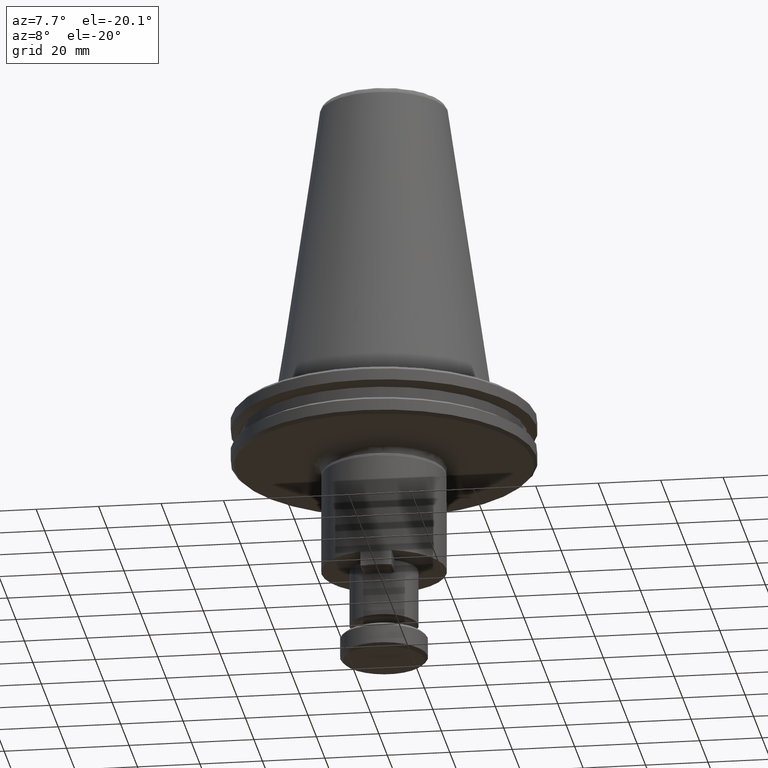
[diagram: clean part render]
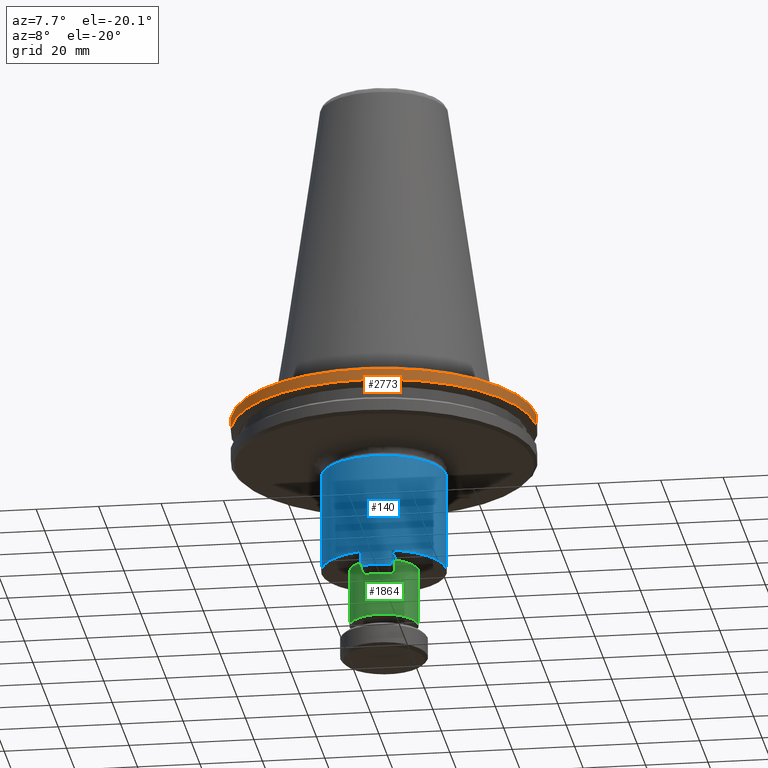
[diagram: same view with three faces highlighted in distinct colors, each labeled with its STEP entity id]
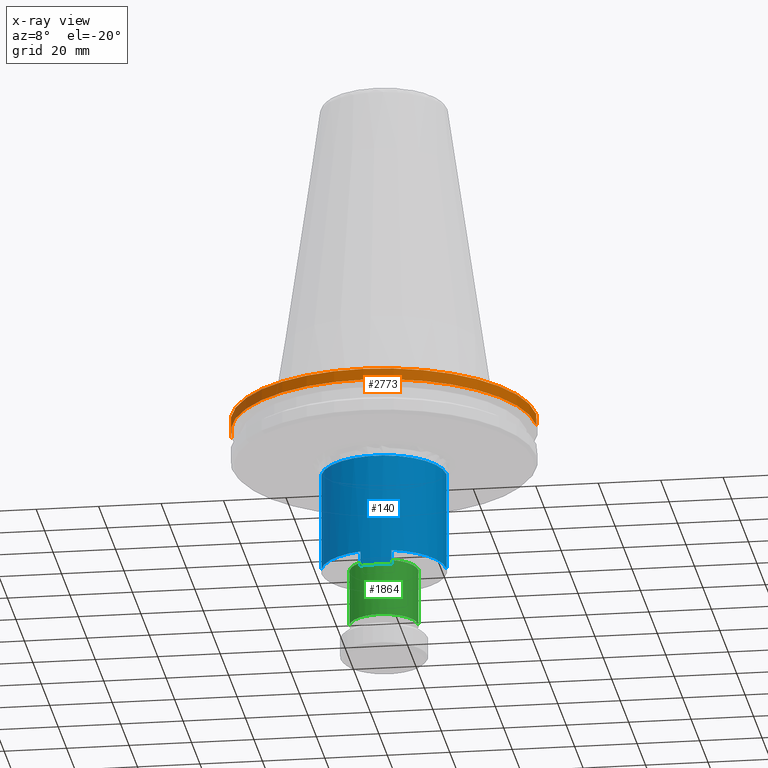
[diagram: x-ray of the same camera — body ghosted, the three highlighted faces saturated]
A machine part, auxiliary view with three faces highlighted in distinct colors.
The next image is the same camera in x-ray (body ghosted, the three faces saturated) — at least one of them is partly hidden behind the body in this view.
Their STEP definitions:

[orange] entity #2773 — the highlighted cylindrical surface (partial cylindrical patch) has radius 48.75 mm, axis along (0, -0, 1).
#58 = CARTESIAN_POINT ( 'NONE',  ( 138.1900091425555700, 102.4230254990840100, 94.45142735088079200 ) ) ;
#152 = LINE ( 'NONE', #2392, #1997 ) ;
#182 = EDGE_CURVE ( 'NONE', #2351, #335, #2199, .T. ) ;
#186 = CARTESIAN_POINT ( 'NONE',  ( 89.44000914255849500, 102.4230254990840100, 90.79902261488047100 ) ) ;
#210 = ORIENTED_EDGE ( 'NONE', *, *, #2836, .F. ) ;
#247 = AXIS2_PLACEMENT_3D ( 'NONE', #186, #392, #1041 ) ;
#335 = VERTEX_POINT ( 'NONE', #1169 ) ;
#392 = DIRECTION ( 'NONE',  ( 0.0000000000000000000, -0.0000000000000000000, 1.000000000000000000 ) ) ;
#571 = EDGE_CURVE ( 'NONE', #1185, #2123, #626, .T. ) ;
#604 = VERTEX_POINT ( 'NONE', #1213 ) ;
#626 = CIRCLE ( 'NONE', #2786, 48.74999999999705800 ) ;
#880 = DIRECTION ( 'NONE',  ( -0.0000000000000000000, -0.0000000000000000000, 1.000000000000000000 ) ) ;
#891 = FACE_OUTER_BOUND ( 'NONE', #2846, .T. ) ;
#895 = DIRECTION ( 'NONE',  ( 1.000000000000000000, 0.0000000000000000000, 0.0000000000000000000 ) ) ;
#900 = CARTESIAN_POINT ( 'NONE',  ( 89.44000914255849500, 102.4230254990840100, 94.45142735088079200 ) ) ;
#1004 = VECTOR ( 'NONE', #1345, 1000.000000000000000 ) ;
#1021 = CARTESIAN_POINT ( 'NONE',  ( 89.44000914255849500, 53.67302549908431100, 94.45142735088079200 ) ) ;
#1041 = DIRECTION ( 'NONE',  ( 1.000000000000000000, 0.0000000000000000000, 0.0000000000000000000 ) ) ;
#1078 = CARTESIAN_POINT ( 'NONE',  ( 138.1900091425027300, 102.4230254990840100, 90.79902261484829800 ) ) ;
#1169 = CARTESIAN_POINT ( 'NONE',  ( 40.69000914261425100, 102.4230254990840100, 90.79902261484829800 ) ) ;
#1185 = VERTEX_POINT ( 'NONE', #1021 ) ;
#1213 = CARTESIAN_POINT ( 'NONE',  ( 40.69000914256143600, 102.4230254990840100, 94.45142735088079200 ) ) ;
#1313 = CARTESIAN_POINT ( 'NONE',  ( 138.1900091425584900, 102.4230254990840100, 90.79902261488047100 ) ) ;
#1345 = DIRECTION ( 'NONE',  ( 0.0000000000000000000, -0.0000000000000000000, 1.000000000000000000 ) ) ;
#1349 = AXIS2_PLACEMENT_3D ( 'NONE', #1621, #1804, #2731 ) ;
#1413 = ORIENTED_EDGE ( 'NONE', *, *, #1949, .F. ) ;
#1571 = AXIS2_PLACEMENT_3D ( 'NONE', #900, #880, #895 ) ;
#1621 = CARTESIAN_POINT ( 'NONE',  ( 89.44000914255849500, 102.4230254990840100, 90.79902261484829800 ) ) ;
#1774 = ORIENTED_EDGE ( 'NONE', *, *, #182, .F. ) ;
#1804 = DIRECTION ( 'NONE',  ( -0.0000000000000000000, -0.0000000000000000000, -1.000000000000000000 ) ) ;
#1874 = CARTESIAN_POINT ( 'NONE',  ( 89.44000914255849500, 102.4230254990840100, 94.45142735088079200 ) ) ;
#1935 = DIRECTION ( 'NONE',  ( 1.000000000000000000, 0.0000000000000000000, 0.0000000000000000000 ) ) ;
#1939 = DIRECTION ( 'NONE',  ( -0.0000000000000000000, -0.0000000000000000000, 1.000000000000000000 ) ) ;
#1949 = EDGE_CURVE ( 'NONE', #604, #1185, #2537, .T. ) ;
#1997 = VECTOR ( 'NONE', #2161, 1000.000000000000000 ) ;
#2123 = VERTEX_POINT ( 'NONE', #58 ) ;
#2161 = DIRECTION ( 'NONE',  ( 0.0000000000000000000, -0.0000000000000000000, 1.000000000000000000 ) ) ;
#2199 = CIRCLE ( 'NONE', #1349, 48.74999999994424400 ) ;
#2321 = CYLINDRICAL_SURFACE ( 'NONE', #247, 48.75000000000000000 ) ;
#2351 = VERTEX_POINT ( 'NONE', #1078 ) ;
#2392 = CARTESIAN_POINT ( 'NONE',  ( 40.69000914255849500, 102.4230254990840100, 90.79902261488047100 ) ) ;
#2537 = CIRCLE ( 'NONE', #1571, 48.74999999999705800 ) ;
#2585 = EDGE_CURVE ( 'NONE', #2351, #2123, #2717, .T. ) ;
#2651 = ORIENTED_EDGE ( 'NONE', *, *, #571, .F. ) ;
#2717 = LINE ( 'NONE', #1313, #1004 ) ;
#2731 = DIRECTION ( 'NONE',  ( 1.000000000000000000, 0.0000000000000000000, 0.0000000000000000000 ) ) ;
#2773 = ADVANCED_FACE ( 'NONE', ( #891 ), #2321, .T. ) ;
#2786 = AXIS2_PLACEMENT_3D ( 'NONE', #1874, #1939, #1935 ) ;
#2836 = EDGE_CURVE ( 'NONE', #335, #604, #152, .T. ) ;
#2840 = ORIENTED_EDGE ( 'NONE', *, *, #2585, .T. ) ;
#2846 = EDGE_LOOP ( 'NONE', ( #210, #1774, #2840, #2651, #1413 ) ) ;

[blue] entity #140 — the highlighted cylindrical surface (partial cylindrical patch) has radius 20 mm, axis along (0, 0, 1).
#13 = CARTESIAN_POINT ( 'NONE',  ( 69.44000914255849500, 102.4230254990840100, 43.65142734608048900 ) ) ;
#73 = AXIS2_PLACEMENT_3D ( 'NONE', #2479, #2487, #2449 ) ;
#130 = EDGE_CURVE ( 'NONE', #2309, #199, #2130, .T. ) ;
#140 = ADVANCED_FACE ( 'NONE', ( #1987 ), #1524, .T. ) ;
#171 = VECTOR ( 'NONE', #2514, 1000.000000000000000 ) ;
#199 = VERTEX_POINT ( 'NONE', #1584 ) ;
#205 = EDGE_CURVE ( 'NONE', #2492, #1455, #1527, .T. ) ;
#208 = VERTEX_POINT ( 'NONE', #1434 ) ;
#352 = LINE ( 'NONE', #516, #2565 ) ;
#516 = CARTESIAN_POINT ( 'NONE',  ( 84.44000914192113800, 83.05810876821148300, 38.85142735088048500 ) ) ;
#614 = DIRECTION ( 'NONE',  ( 0.0000000000000000000, 0.0000000000000000000, 1.000000000000000000 ) ) ;
#634 = EDGE_CURVE ( 'NONE', #2590, #1455, #1502, .T. ) ;
#646 = CARTESIAN_POINT ( 'NONE',  ( 109.4400091425584900, 102.4230254990840100, 38.85142735088048500 ) ) ;
#746 = DIRECTION ( 'NONE',  ( -1.000000000000000000, 0.0000000000000000000, 0.0000000000000000000 ) ) ;
#837 = AXIS2_PLACEMENT_3D ( 'NONE', #1934, #2310, #2444 ) ;
#1010 = CARTESIAN_POINT ( 'NONE',  ( 109.4400091425584900, 102.4230254990840100, 75.54976151069280400 ) ) ;
#1098 = CIRCLE ( 'NONE', #1474, 20.00000000000000400 ) ;
#1163 = DIRECTION ( 'NONE',  ( -0.0000000000000000000, -0.0000000000000000000, -1.000000000000000000 ) ) ;
#1175 = VERTEX_POINT ( 'NONE', #2266 ) ;
#1199 = EDGE_CURVE ( 'NONE', #1839, #1175, #352, .T. ) ;
#1434 = CARTESIAN_POINT ( 'NONE',  ( 109.4400091425584900, 102.4230254990840100, 43.65142734968048900 ) ) ;
#1441 = ORIENTED_EDGE ( 'NONE', *, *, #130, .T. ) ;
#1452 = VECTOR ( 'NONE', #1601, 1000.000000000000000 ) ;
#1455 = VERTEX_POINT ( 'NONE', #2183 ) ;
#1474 = AXIS2_PLACEMENT_3D ( 'NONE', #2004, #1998, #1994 ) ;
#1480 = CARTESIAN_POINT ( 'NONE',  ( 69.44000914255849500, 102.4230254990840100, 38.85142735088048500 ) ) ;
#1502 = CIRCLE ( 'NONE', #2363, 20.00000000000000400 ) ;
#1524 = CYLINDRICAL_SURFACE ( 'NONE', #837, 20.00000000000000400 ) ;
#1527 = LINE ( 'NONE', #1480, #1452 ) ;
#1541 = DIRECTION ( 'NONE',  ( -0.0000000000000000000, -0.0000000000000000000, -1.000000000000000000 ) ) ;
#1584 = CARTESIAN_POINT ( 'NONE',  ( 94.44000914484949800, 83.05810876863846200, 43.65142734968048900 ) ) ;
#1601 = DIRECTION ( 'NONE',  ( 0.0000000000000000000, 0.0000000000000000000, 1.000000000000000000 ) ) ;
#1623 = EDGE_LOOP ( 'NONE', ( #2028, #2125, #2278, #2486, #1441, #2227, #2157, #2782 ) ) ;
#1723 = EDGE_CURVE ( 'NONE', #2492, #1839, #1098, .T. ) ;
#1741 = EDGE_CURVE ( 'NONE', #1175, #2309, #2206, .T. ) ;
#1754 = CARTESIAN_POINT ( 'NONE',  ( 84.44000914231450800, 83.05810876810993200, 43.65142734968048900 ) ) ;
#1789 = CIRCLE ( 'NONE', #73, 20.00000000000000400 ) ;
#1839 = VERTEX_POINT ( 'NONE', #1754 ) ;
#1934 = CARTESIAN_POINT ( 'NONE',  ( 89.44000914255849500, 102.4230254990840100, 38.85142735088048500 ) ) ;
#1942 = DIRECTION ( 'NONE',  ( 1.000000000000000000, 0.0000000000000000000, 0.0000000000000000000 ) ) ;
#1957 = DIRECTION ( 'NONE',  ( 0.0000000000000000000, 0.0000000000000000000, 1.000000000000000000 ) ) ;
#1960 = CARTESIAN_POINT ( 'NONE',  ( 94.44000914484949800, 83.05810876863846200, 38.85142735088048500 ) ) ;
#1972 = CARTESIAN_POINT ( 'NONE',  ( 89.44000914255849500, 102.4230254990840100, 38.85142735088049200 ) ) ;
#1987 = FACE_OUTER_BOUND ( 'NONE', #1623, .T. ) ;
#1994 = DIRECTION ( 'NONE',  ( 1.000000000000000000, 0.0000000000000000000, 0.0000000000000000000 ) ) ;
#1998 = DIRECTION ( 'NONE',  ( 0.0000000000000000000, 0.0000000000000000000, 1.000000000000000000 ) ) ;
#2004 = CARTESIAN_POINT ( 'NONE',  ( 89.44000914255849500, 102.4230254990840100, 43.65142734608048900 ) ) ;
#2021 = CARTESIAN_POINT ( 'NONE',  ( 89.44000914255849500, 102.4230254990840100, 75.54976151069280400 ) ) ;
#2028 = ORIENTED_EDGE ( 'NONE', *, *, #205, .F. ) ;
#2125 = ORIENTED_EDGE ( 'NONE', *, *, #1723, .T. ) ;
#2130 = LINE ( 'NONE', #1960, #171 ) ;
#2143 = LINE ( 'NONE', #646, #2290 ) ;
#2157 = ORIENTED_EDGE ( 'NONE', *, *, #2425, .T. ) ;
#2183 = CARTESIAN_POINT ( 'NONE',  ( 69.44000914255849500, 102.4230254990840100, 75.54976151069280400 ) ) ;
#2206 = CIRCLE ( 'NONE', #2726, 20.00000000000000400 ) ;
#2227 = ORIENTED_EDGE ( 'NONE', *, *, #2292, .T. ) ;
#2266 = CARTESIAN_POINT ( 'NONE',  ( 84.44000914221169300, 83.05810876802030400, 38.85142735099296400 ) ) ;
#2278 = ORIENTED_EDGE ( 'NONE', *, *, #1199, .T. ) ;
#2290 = VECTOR ( 'NONE', #614, 1000.000000000000000 ) ;
#2292 = EDGE_CURVE ( 'NONE', #199, #208, #1789, .T. ) ;
#2309 = VERTEX_POINT ( 'NONE', #2470 ) ;
#2310 = DIRECTION ( 'NONE',  ( 0.0000000000000000000, 0.0000000000000000000, 1.000000000000000000 ) ) ;
#2363 = AXIS2_PLACEMENT_3D ( 'NONE', #2021, #1163, #746 ) ;
#2425 = EDGE_CURVE ( 'NONE', #208, #2590, #2143, .T. ) ;
#2444 = DIRECTION ( 'NONE',  ( 1.000000000000000000, 0.0000000000000000000, 0.0000000000000000000 ) ) ;
#2449 = DIRECTION ( 'NONE',  ( 1.000000000000000000, 0.0000000000000000000, 0.0000000000000000000 ) ) ;
#2470 = CARTESIAN_POINT ( 'NONE',  ( 94.44000914370400300, 83.05810876834269200, 38.85142735088048500 ) ) ;
#2479 = CARTESIAN_POINT ( 'NONE',  ( 89.44000914255849500, 102.4230254990840100, 43.65142734968048900 ) ) ;
#2486 = ORIENTED_EDGE ( 'NONE', *, *, #1741, .T. ) ;
#2487 = DIRECTION ( 'NONE',  ( 0.0000000000000000000, 0.0000000000000000000, 1.000000000000000000 ) ) ;
#2492 = VERTEX_POINT ( 'NONE', #13 ) ;
#2514 = DIRECTION ( 'NONE',  ( 0.0000000000000000000, 0.0000000000000000000, 1.000000000000000000 ) ) ;
#2565 = VECTOR ( 'NONE', #1541, 1000.000000000000000 ) ;
#2590 = VERTEX_POINT ( 'NONE', #1010 ) ;
#2726 = AXIS2_PLACEMENT_3D ( 'NONE', #1972, #1957, #1942 ) ;
#2782 = ORIENTED_EDGE ( 'NONE', *, *, #634, .T. ) ;

[green] entity #1864 — the highlighted cylindrical surface (edge-blend (fillet) strip) has radius 11 mm, axis along (-0, -0, -1).
#62 = AXIS2_PLACEMENT_3D ( 'NONE', #1433, #1376, #1478 ) ;
#72 = EDGE_LOOP ( 'NONE', ( #1941, #1402, #2702, #280, #720 ) ) ;
#150 = FACE_OUTER_BOUND ( 'NONE', #72, .T. ) ;
#178 = LINE ( 'NONE', #2430, #1916 ) ;
#193 = EDGE_CURVE ( 'NONE', #406, #1299, #816, .T. ) ;
#252 = LINE ( 'NONE', #952, #1823 ) ;
#280 = ORIENTED_EDGE ( 'NONE', *, *, #193, .F. ) ;
#406 = VERTEX_POINT ( 'NONE', #841 ) ;
#440 = CARTESIAN_POINT ( 'NONE',  ( 78.44000914255846600, 102.4230254990840100, 43.65142734968048900 ) ) ;
#471 = AXIS2_PLACEMENT_3D ( 'NONE', #1393, #2776, #1923 ) ;
#501 = CARTESIAN_POINT ( 'NONE',  ( 100.4400091425585200, 102.4230254990840100, 43.65142734968048900 ) ) ;
#544 = VERTEX_POINT ( 'NONE', #440 ) ;
#720 = ORIENTED_EDGE ( 'NONE', *, *, #1253, .F. ) ;
#733 = EDGE_CURVE ( 'NONE', #1059, #544, #2597, .T. ) ;
#816 = CIRCLE ( 'NONE', #1699, 11.00000000000002300 ) ;
#841 = CARTESIAN_POINT ( 'NONE',  ( 89.44000914255849500, 91.42302549908399100, 25.25142735088048300 ) ) ;
#861 = DIRECTION ( 'NONE',  ( -0.0000000000000000000, -0.0000000000000000000, -1.000000000000000000 ) ) ;
#938 = DIRECTION ( 'NONE',  ( -0.0000000000000000000, -0.0000000000000000000, -1.000000000000000000 ) ) ;
#952 = CARTESIAN_POINT ( 'NONE',  ( 78.44000914255846600, 102.4230254990840100, 25.25142735088048300 ) ) ;
#974 = AXIS2_PLACEMENT_3D ( 'NONE', #1285, #1170, #1674 ) ;
#1059 = VERTEX_POINT ( 'NONE', #501 ) ;
#1170 = DIRECTION ( 'NONE',  ( -0.0000000000000000000, -0.0000000000000000000, -1.000000000000000000 ) ) ;
#1253 = EDGE_CURVE ( 'NONE', #1731, #406, #2030, .T. ) ;
#1285 = CARTESIAN_POINT ( 'NONE',  ( 89.44000914255849500, 102.4230254990840100, 43.65142734968048900 ) ) ;
#1299 = VERTEX_POINT ( 'NONE', #1745 ) ;
#1376 = DIRECTION ( 'NONE',  ( -0.0000000000000000000, -0.0000000000000000000, -1.000000000000000000 ) ) ;
#1393 = CARTESIAN_POINT ( 'NONE',  ( 89.44000914255849500, 102.4230254990840100, 25.25142735088048300 ) ) ;
#1402 = ORIENTED_EDGE ( 'NONE', *, *, #733, .T. ) ;
#1433 = CARTESIAN_POINT ( 'NONE',  ( 89.44000914255849500, 102.4230254990840100, 25.25142735088048300 ) ) ;
#1437 = EDGE_CURVE ( 'NONE', #1059, #1731, #178, .T. ) ;
#1478 = DIRECTION ( 'NONE',  ( -1.000000000000000000, 0.0000000000000000000, 0.0000000000000000000 ) ) ;
#1534 = DIRECTION ( 'NONE',  ( -0.0000000000000000000, -0.0000000000000000000, -1.000000000000000000 ) ) ;
#1556 = DIRECTION ( 'NONE',  ( -1.000000000000000000, 0.0000000000000000000, 0.0000000000000000000 ) ) ;
#1574 = CARTESIAN_POINT ( 'NONE',  ( 89.44000914255849500, 102.4230254990840100, 25.25142735088048300 ) ) ;
#1674 = DIRECTION ( 'NONE',  ( -1.000000000000000000, 0.0000000000000000000, 0.0000000000000000000 ) ) ;
#1699 = AXIS2_PLACEMENT_3D ( 'NONE', #1574, #1534, #1556 ) ;
#1731 = VERTEX_POINT ( 'NONE', #2016 ) ;
#1745 = CARTESIAN_POINT ( 'NONE',  ( 78.44000914255846600, 102.4230254990840100, 25.25142735088048300 ) ) ;
#1823 = VECTOR ( 'NONE', #938, 1000.000000000000000 ) ;
#1864 = ADVANCED_FACE ( 'NONE', ( #150 ), #2596, .T. ) ;
#1901 = EDGE_CURVE ( 'NONE', #544, #1299, #252, .T. ) ;
#1916 = VECTOR ( 'NONE', #861, 1000.000000000000000 ) ;
#1923 = DIRECTION ( 'NONE',  ( -1.000000000000000000, 0.0000000000000000000, 0.0000000000000000000 ) ) ;
#1941 = ORIENTED_EDGE ( 'NONE', *, *, #1437, .F. ) ;
#2016 = CARTESIAN_POINT ( 'NONE',  ( 100.4400091425585200, 102.4230254990840100, 25.25142735088048300 ) ) ;
#2030 = CIRCLE ( 'NONE', #471, 11.00000000000002300 ) ;
#2430 = CARTESIAN_POINT ( 'NONE',  ( 100.4400091425585200, 102.4230254990840100, 25.25142735088048300 ) ) ;
#2596 = CYLINDRICAL_SURFACE ( 'NONE', #62, 11.00000000000002300 ) ;
#2597 = CIRCLE ( 'NONE', #974, 11.00000000000002300 ) ;
#2702 = ORIENTED_EDGE ( 'NONE', *, *, #1901, .T. ) ;
#2776 = DIRECTION ( 'NONE',  ( -0.0000000000000000000, -0.0000000000000000000, -1.000000000000000000 ) ) ;